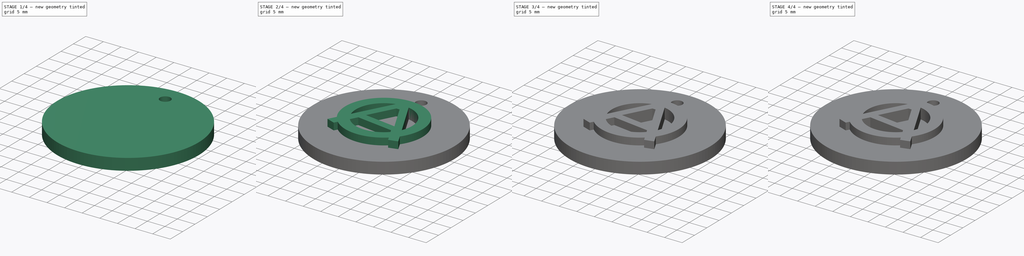
[diagram: build sequence overview — one tinted view per stage of 4, left to right]
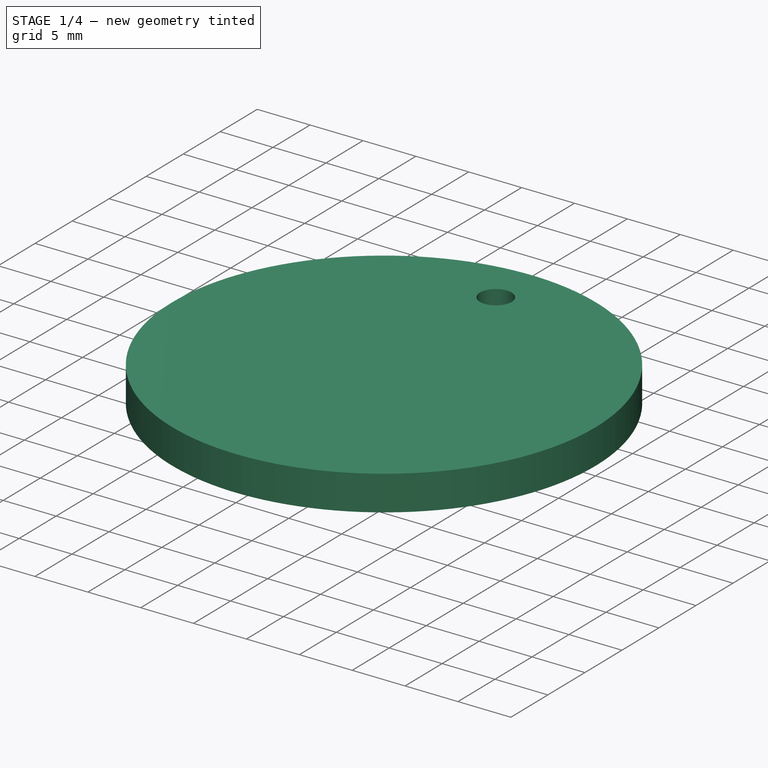
[diagram: stage 1 of 4 — iso view after this stage's code; geometry added in this stage tinted green]
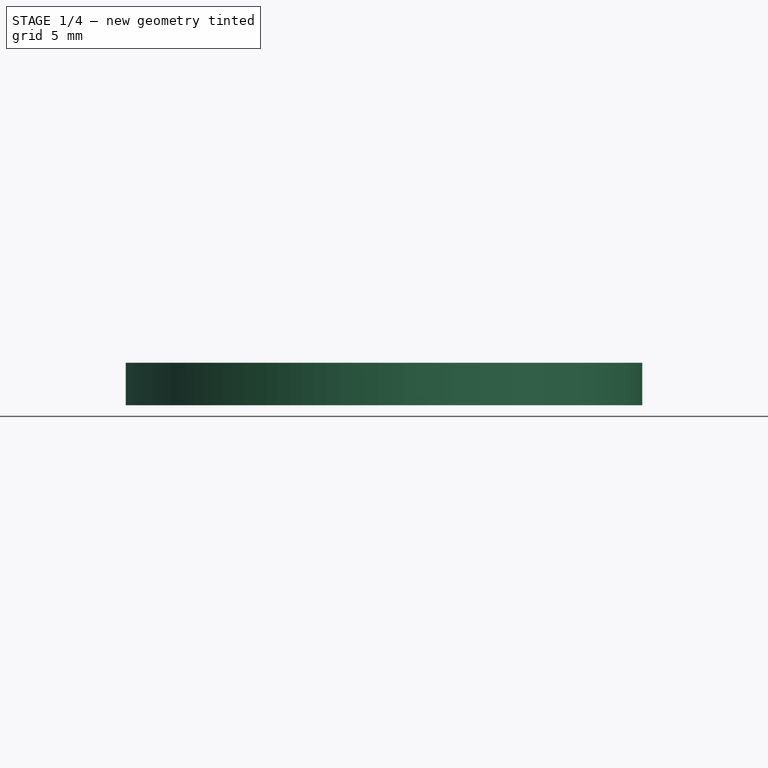
[diagram: stage 1 of 4 — front view after this stage's code; geometry added in this stage tinted green]
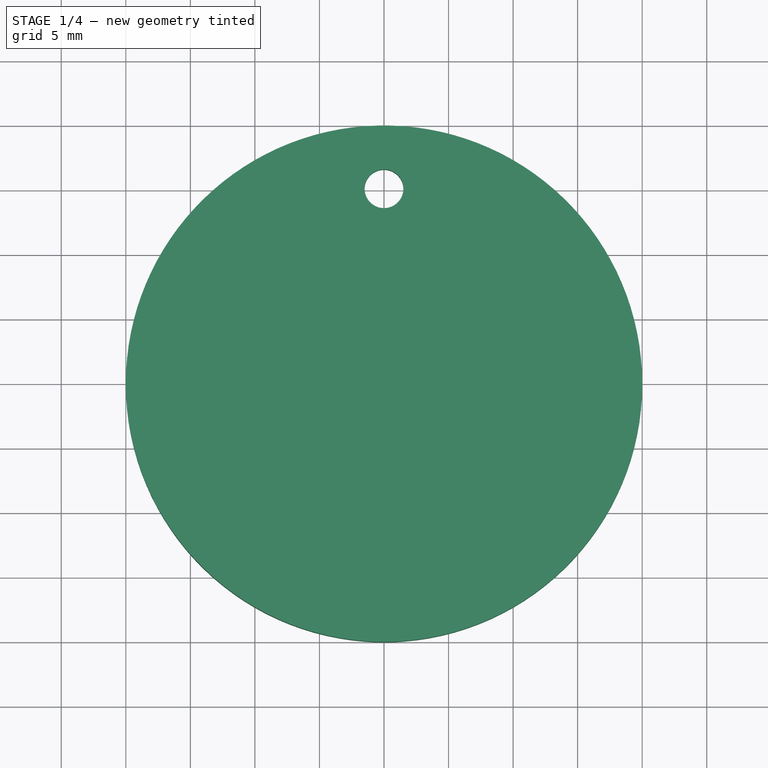
[diagram: stage 1 of 4 — top view after this stage's code; geometry added in this stage tinted green]
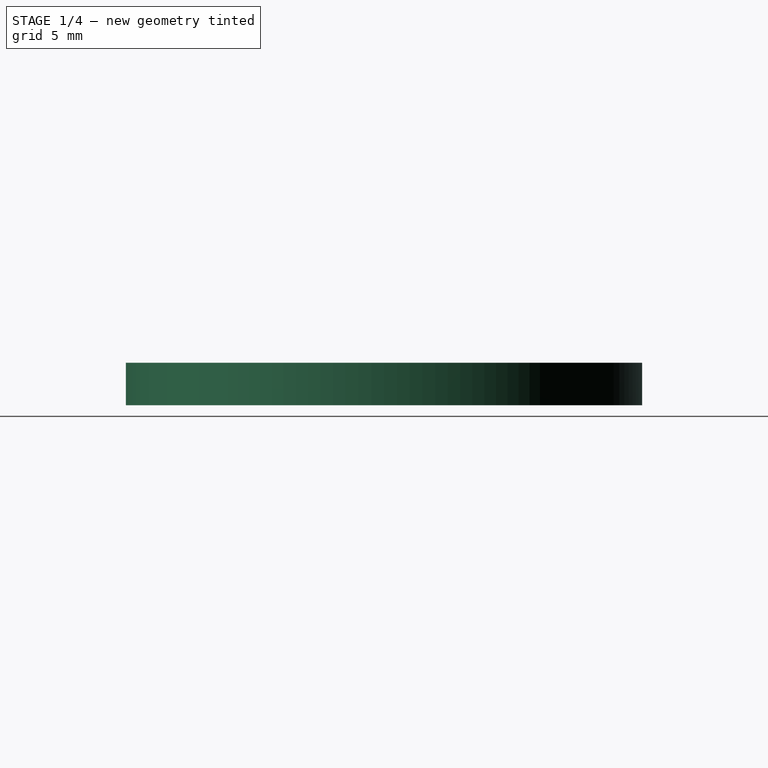
[diagram: stage 1 of 4 — right view after this stage's code; geometry added in this stage tinted green]
FCSTD DOCUMENT  (FreeCAD 0.16R6707 (Git))
Label: T5-Recuerdo
License: CreativeCommons Attribution-ShareAlike
LicenseURL: http://creativecommons.org/licenses/by-sa/4.0/
objects: Part::Feature×6, Part::Extrusion×4, Part::Cut×4, Sketcher::SketchObject×2, App::DocumentObjectGroup×2, Part::Cylinder×1, PartDesign::Pocket×1, PartDesign::Pad×1
note: 21 computed .brp shape members not serialized (recipe doc carries the construction recipe); baked Part::Feature solids carry a one-line shape summary decoded from their .brp

FEATURE [Part::Cylinder] Cylinder  label="casino-chip-main body"
  Angle = 360
  Height = 3.3
  Radius = 20
FEATURE [Sketcher::SketchObject] Sketch  label="hole-sketch"
  Placement = pos=(0,0,3.3) rot=(0,0,1;0rad)
  Support = -> Cylinder [Face2]
  sketch-geometry (1):
    g0: Circle CenterX=0 CenterY=15.1 CenterZ=0 NormalX=0 NormalY=0 NormalZ=1 Radius=1.5
  constraints (3):
    c: Radius(g0) = 1.5
    c: PointOnObject(g0,g-2)
    c: DistanceY(g-1,g0) = 15.1
FEATURE [PartDesign::Pocket] Pocket  label="casino-chip-key-chain"
  Length = 5
  Sketch = -> Sketch
  Type = 1
FEATURE [Part::Feature] Face025
  shape: bbox 6.471 x 11.08 x 2e-07 mm, 1 faces, 0 solids (baked)
FEATURE [Part::Feature] Face026
  shape: bbox 11.82 x 4.755 x 2e-07 mm, 1 faces, 0 solids (baked)
FEATURE [Part::Feature] Face027
  shape: bbox 5.938 x 10.38 x 2e-07 mm, 1 faces, 0 solids (baked)
FEATURE [Part::Feature] Face028
  shape: bbox 8.984 x 8.31 x 2e-07 mm, 1 faces, 0 solids (baked)
FEATURE [Part::Extrusion] Extrude
  Base = -> Face025
  Dir = (0,0,-1)
  Solid = false
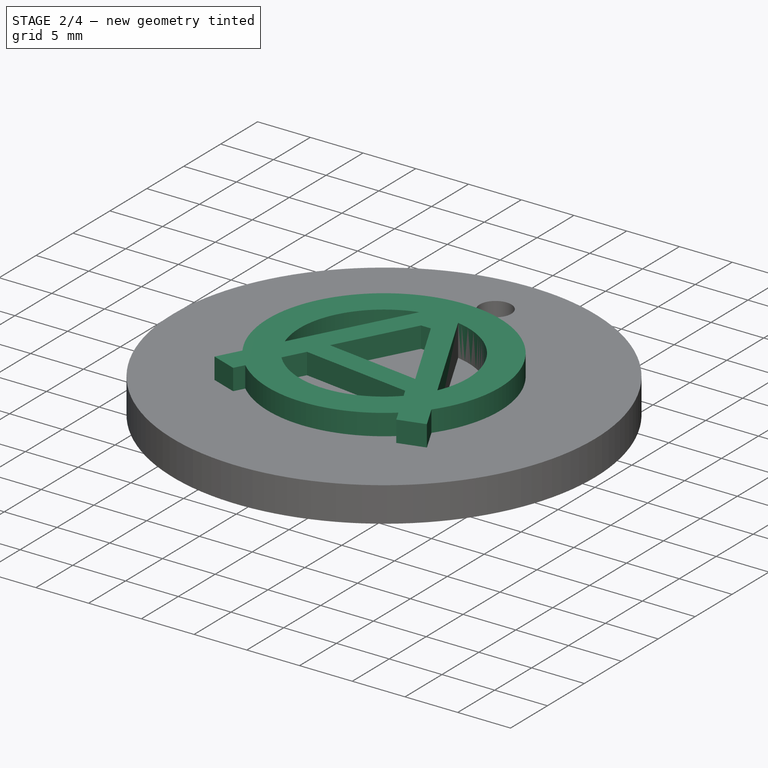
[diagram: stage 2 of 4 — iso view after this stage's code; geometry added in this stage tinted green]
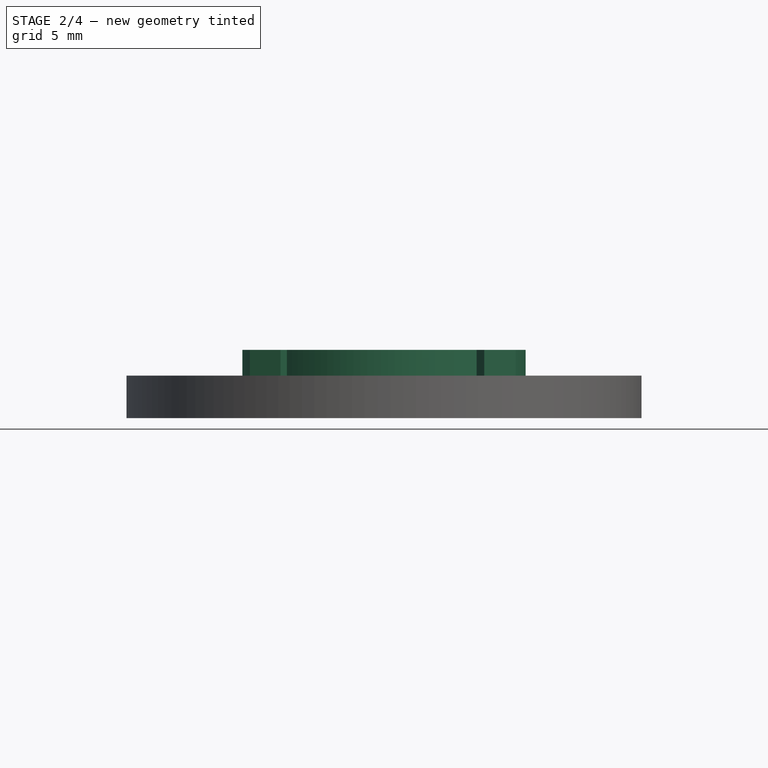
[diagram: stage 2 of 4 — front view after this stage's code; geometry added in this stage tinted green]
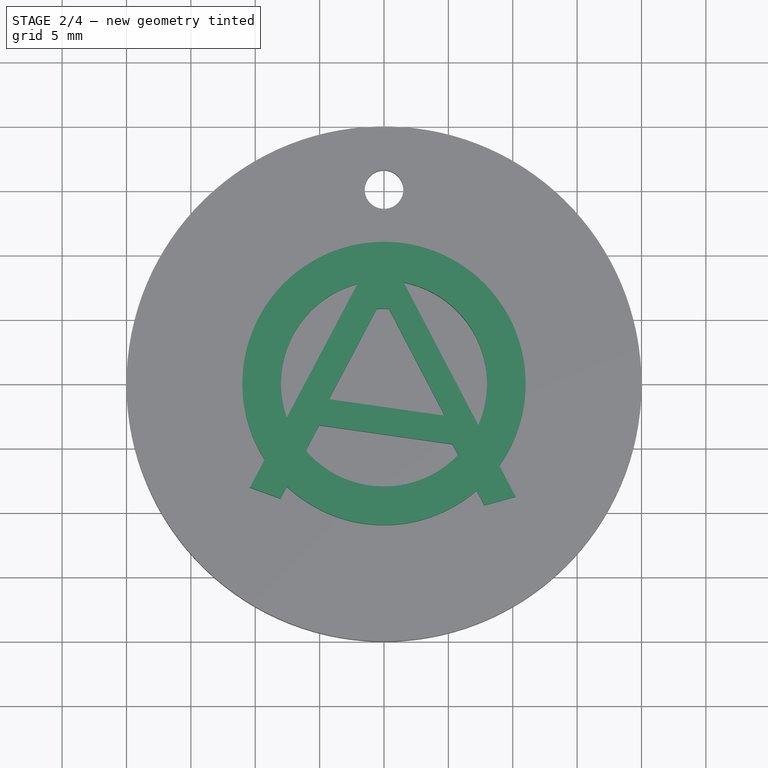
[diagram: stage 2 of 4 — top view after this stage's code; geometry added in this stage tinted green]
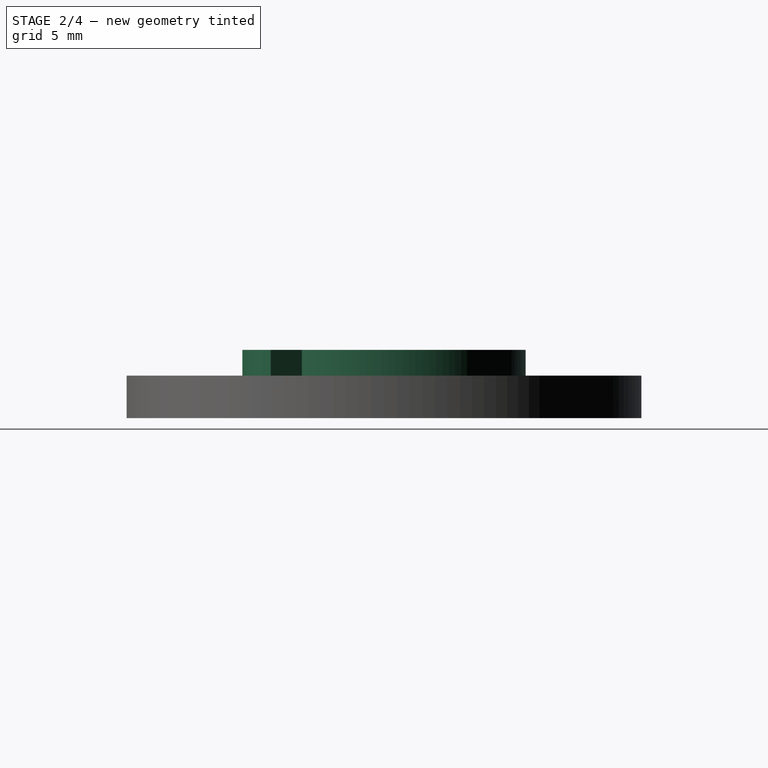
[diagram: stage 2 of 4 — right view after this stage's code; geometry added in this stage tinted green]
FEATURE [App::DocumentObjectGroup] Group001  label="Casino-chip-src"
  Group = -> [Cylinder,Pocket]
FEATURE [Part::Feature] Sweep  label="key-ring-model-1"
  Placement = pos=(-1.2,24.7546,1.6391) rot=(0.333333,0.881918,0.333333;1.69612rad)
  shape: bbox 3.31 x 27.02 x 26.33 mm, 4 faces (baked)
FEATURE [Part::Feature] Cut  label="key-model-1"
  Placement = pos=(-5.46976,31.0266,0) rot=(0,0,1;0.517888rad)
  shape: bbox 49.82 x 36.6 x 2.3 mm, 44 faces (baked)
FEATURE [App::DocumentObjectGroup] Group  label="Assembly"
  Group = -> [Sweep,Cut]
FEATURE [Sketcher::SketchObject] Sketch001
  Placement = pos=(0,0,3.3) rot=(0,0,1;0rad)
  Support = -> Pocket [Face2]
  sketch-geometry (20):
    g0: ArcOfCircle CenterX=0 CenterY=0 CenterZ=0 NormalX=0 NormalY=0 NormalZ=1 Radius=11 StartAngle=5.66462 EndAngle=9.99274
    g1: ArcOfCircle CenterX=0 CenterY=0 CenterZ=0 NormalX=0 NormalY=0 NormalZ=1 Radius=8 StartAngle=1.83155 EndAngle=3.47946
    g2: LineSegment StartX=-2.06245 StartY=7.72957 StartZ=0 EndX=-7.54772 EndY=-2.65178 EndZ=0
    g3: LineSegment StartX=-10.4134 StartY=-8.07537 StartZ=0 EndX=-8.04235 EndY=-8.94595 EndZ=0
    g4: LineSegment StartX=-8.04235 StartY=-8.94595 StartZ=0 EndX=-7.54496 EndY=-8.0046 EndZ=0
    g5: LineSegment StartX=-5.02992 StartY=-3.24468 StartZ=0 EndX=5.31374 EndY=-4.72147 EndZ=0
    g6: LineSegment StartX=5.31374 StartY=-4.72147 StartZ=0 EndX=5.75185 EndY=-5.56024 EndZ=0
    g7: LineSegment StartX=7.79075 StartY=-9.46382 StartZ=0 EndX=10.2241 EndY=-8.7953 EndZ=0
    g8: LineSegment StartX=10.2241 StartY=-8.7953 StartZ=0 EndX=8.96183 EndY=-6.37853 EndZ=0
    g9: LineSegment StartX=-6.06933 StartY=-5.21184 StartZ=0 EndX=-5.02992 EndY=-3.24468 EndZ=0
    g10: LineSegment StartX=-9.27301 StartY=-5.91703 StartZ=0 EndX=-10.4134 EndY=-8.07537 EndZ=0
    g11: LineSegment StartX=7.19405 StartY=-8.3214 StartZ=0 EndX=7.79075 EndY=-9.46382 EndZ=0
    g12: LineSegment StartX=7.3182 StartY=-3.23172 StartZ=0 EndX=1.52867 EndY=7.85259 EndZ=0
    g13: ArcOfCircle CenterX=0 CenterY=0 CenterZ=0 NormalX=0 NormalY=0 NormalZ=1 Radius=8 StartAngle=3.85113 EndAngle=5.51472
    g14: ArcOfCircle CenterX=0 CenterY=0 CenterZ=0 NormalX=0 NormalY=0 NormalZ=1 Radius=11 StartAngle=3.95654 EndAngle=5.42525
    g15: LineSegment StartX=-4.26659 StartY=-1.22212 StartZ=0 EndX=4.71754 EndY=-2.5048 EndZ=0
    g16: LineSegment StartX=4.71754 StartY=-2.5048 StartZ=0 EndX=0.3771 EndY=5.80518 EndZ=0
    g17: LineSegment StartX=0.3771 StartY=5.80518 StartZ=0 EndX=-0.553524 EndY=5.80518 EndZ=0
    g18: LineSegment StartX=-0.553524 StartY=5.80518 StartZ=0 EndX=-4.26659 EndY=-1.22212 EndZ=0
    g19: ArcOfCircle CenterX=0 CenterY=0 CenterZ=0 NormalX=0 NormalY=0 NormalZ=1 Radius=8 StartAngle=5.86734 EndAngle=7.66172
  constraints (41):
    c: Coincident(g0,g-1)
    c: Radius(g0) = 11
    c: PointOnObject(g1,g-1)
    c: Coincident(g0,g1)
    c: Radius(g1) = 8
    c: Coincident(g10,g3)
    c: Coincident(g3,g4)
    c: Coincident(g9,g5)
    c: Coincident(g5,g6)
    c: Coincident(g11,g7)
    c: Coincident(g7,g8)
    c: Tangent(g4,g9)
    c: Tangent(g2,g10)
    c: Tangent(g6,g11)
    c: Tangent(g8,g12)
    c: PointOnObject(g12,g1)
    c: Coincident(g1,g2)
    c: Coincident(g0,g8)
    c: Coincident(g14,g11)
    c: Coincident(g13,g6)
    c: Equal(g1,g13)
    c: Coincident(g1,g2)
    c: Coincident(g13,g9)
    c: Coincident(g1,g13)
    c: Equal(g0,g14)
    c: Coincident(g0,g10)
    c: Coincident(g14,g4)
    c: Coincident(g0,g14)
    c: Coincident(g15,g16)
    c: Coincident(g16,g17)
    c: Coincident(g17,g18)
    c: Coincident(g18,g15)
    c: Parallel(g2,g18)
    c: Parallel(g18,g9)
    c: Coincident(g19,g-1)
    c: Coincident(g19,g12)
    c: Coincident(g12,g19)
    c: Parallel(g16,g12)
    c: Parallel(g12,g6)
    c: Parallel(g15,g5)
    c: Horizontal(g17)
FEATURE [PartDesign::Pad] Pad
  Length = 2
  Length2 = 100
  Sketch = -> Sketch001
  Type = 0
FEATURE [Part::Extrusion] Extrude003
  Base = -> Face028
  Dir = (0,0,-1)
  Solid = false
FEATURE [Part::Cut] Cut001
  Base = -> Pad
  Tool = -> Extrude
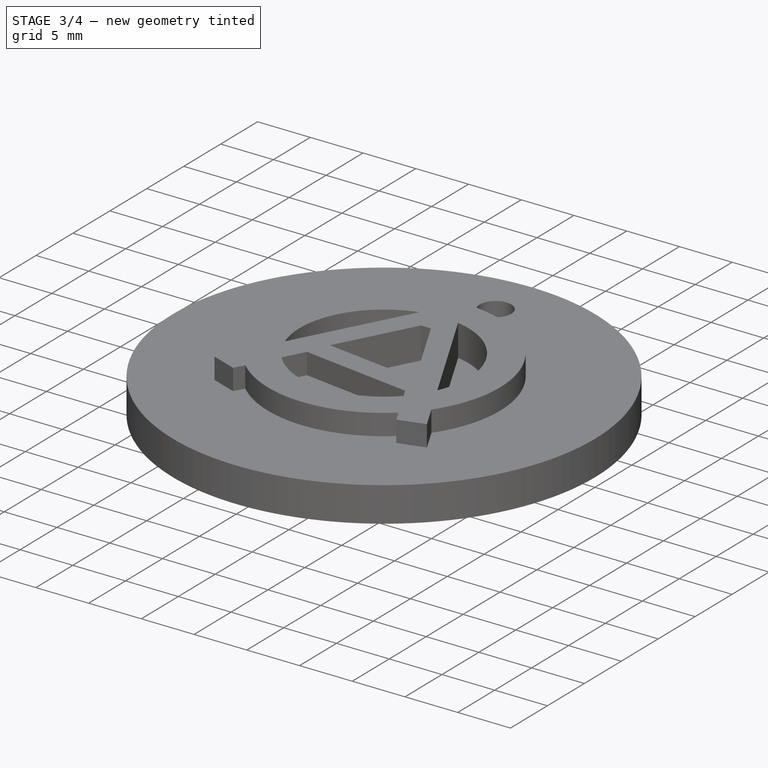
[diagram: stage 3 of 4 — iso view after this stage's code; geometry added in this stage tinted green]
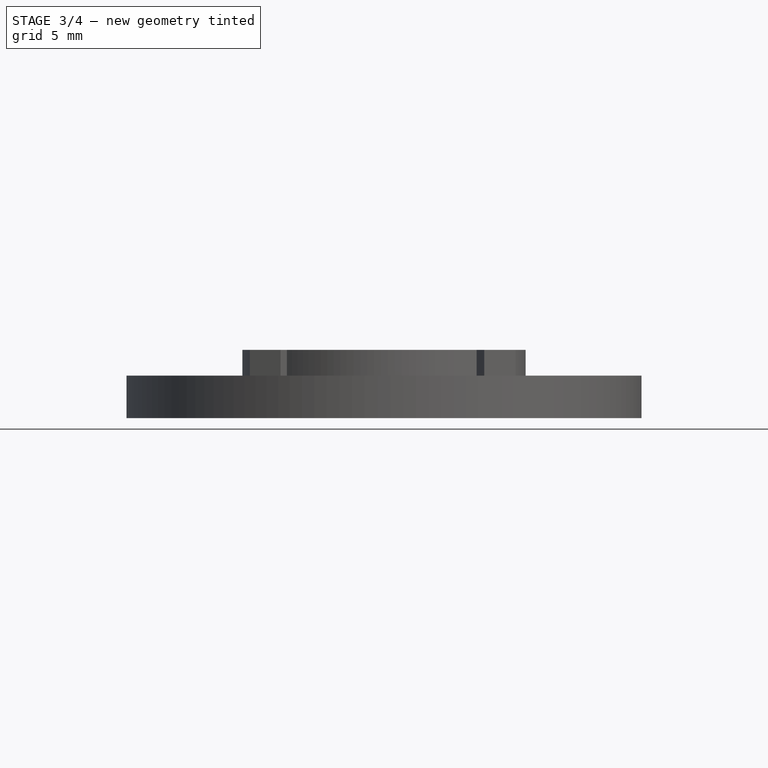
[diagram: stage 3 of 4 — front view after this stage's code; geometry added in this stage tinted green]
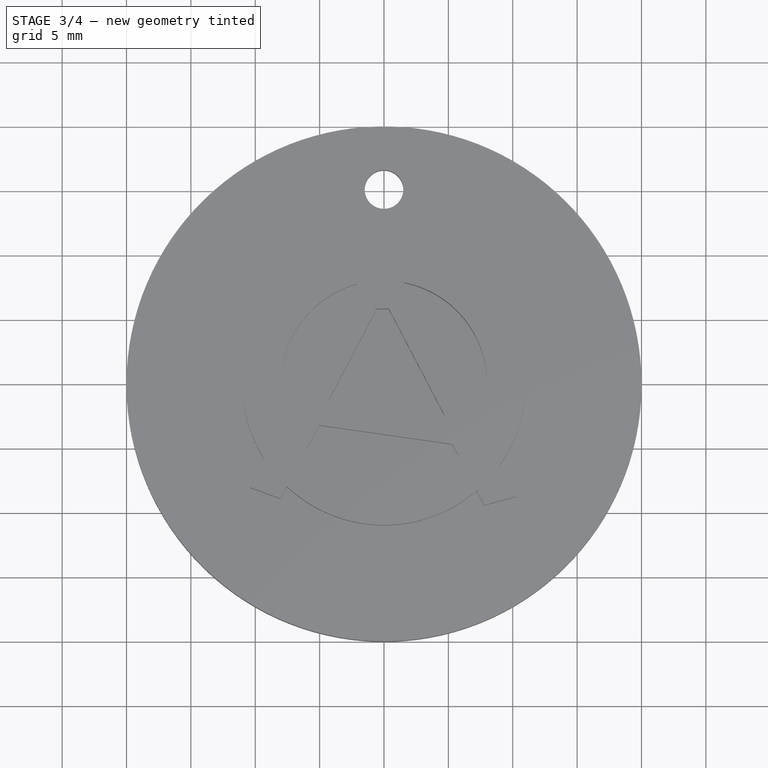
[diagram: stage 3 of 4 — top view after this stage's code; geometry added in this stage tinted green]
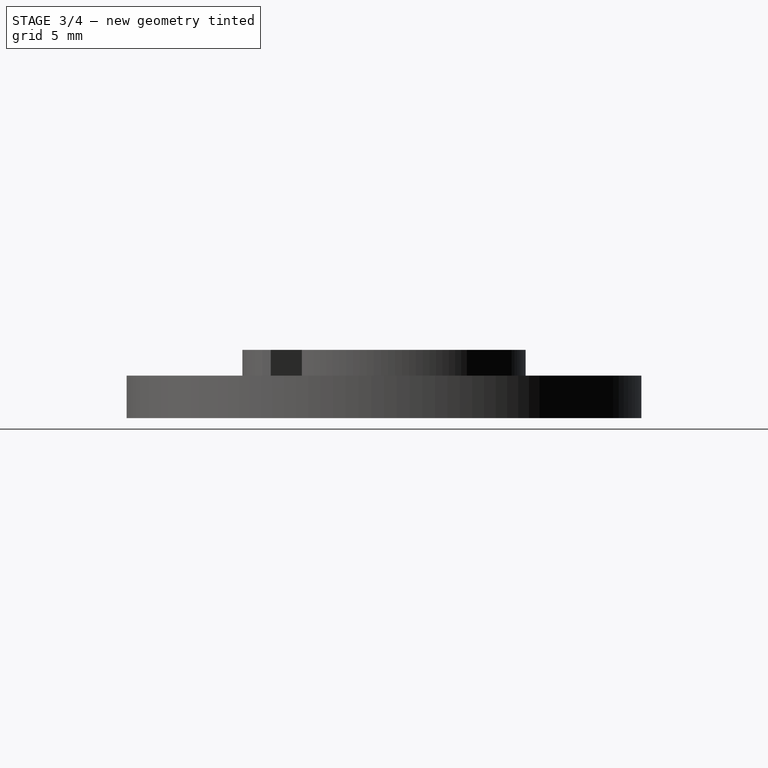
[diagram: stage 3 of 4 — right view after this stage's code; geometry added in this stage tinted green]
FEATURE [Part::Extrusion] Extrude002
  Base = -> Face027
  Dir = (0,0,-1)
  Solid = false
FEATURE [Part::Cut] Cut002
  Base = -> Cut001
  Tool = -> Extrude003
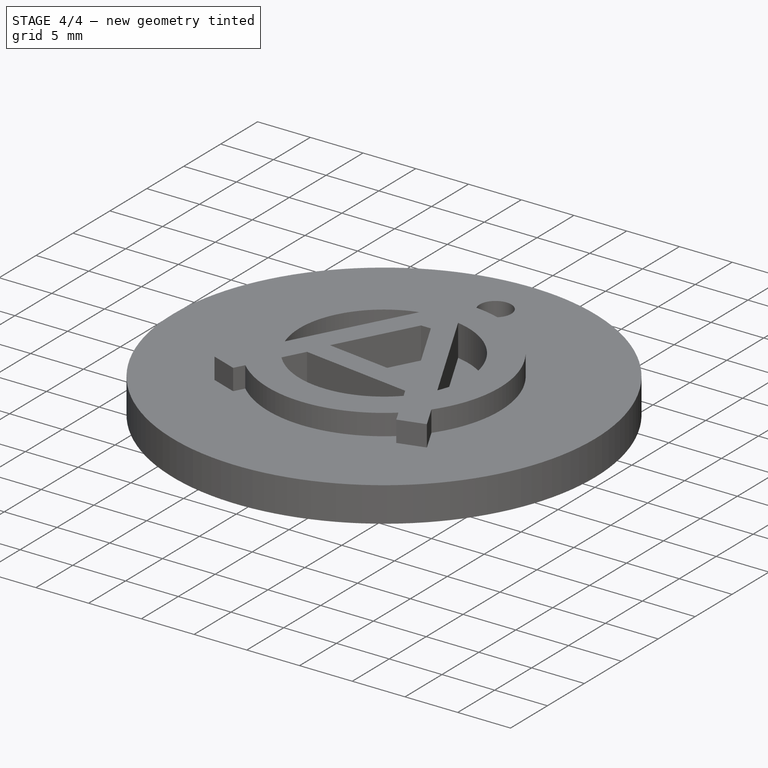
[diagram: stage 4 of 4 — iso view after this stage's code; geometry added in this stage tinted green]
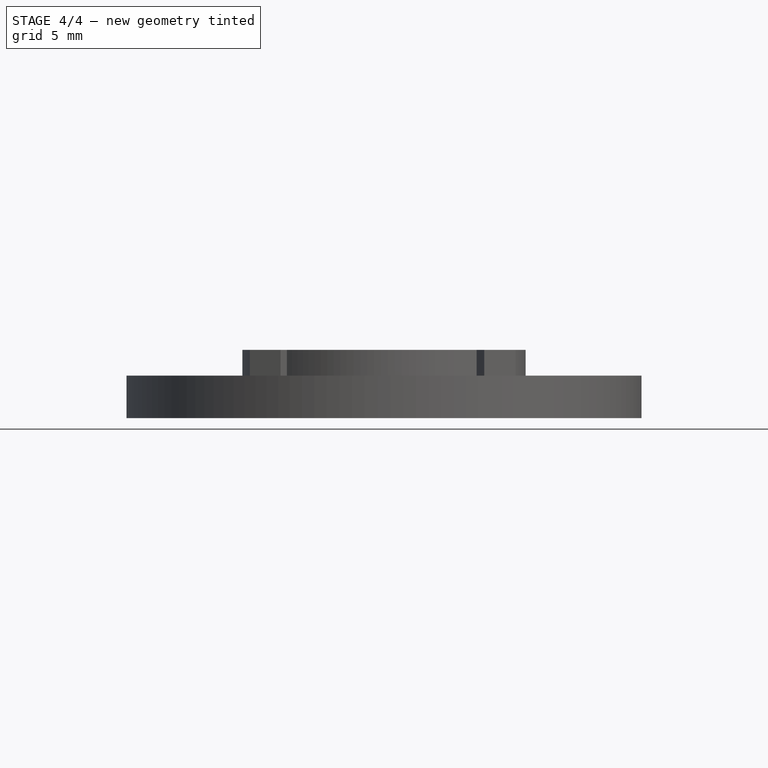
[diagram: stage 4 of 4 — front view after this stage's code; geometry added in this stage tinted green]
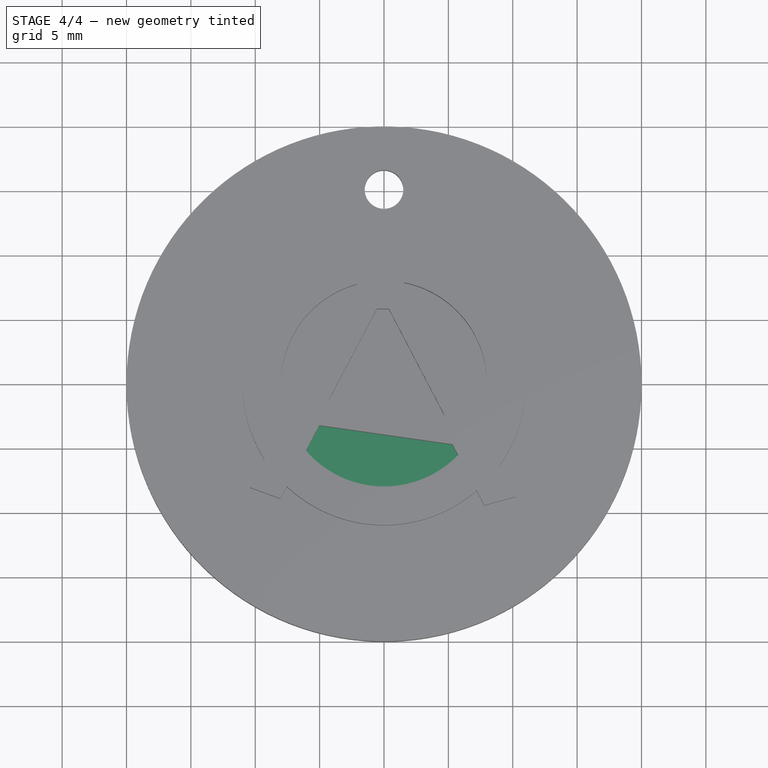
[diagram: stage 4 of 4 — top view after this stage's code; geometry added in this stage tinted green]
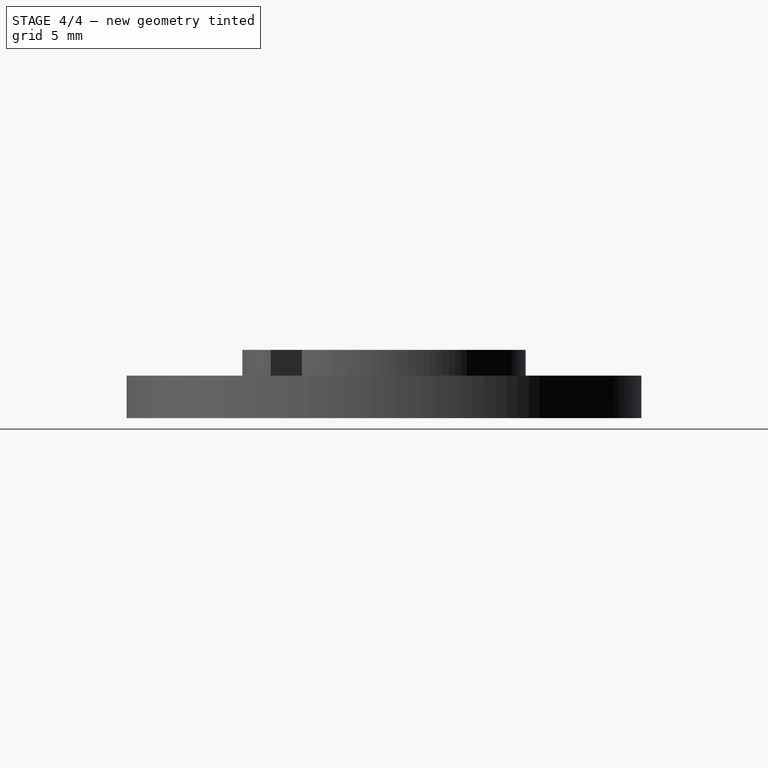
[diagram: stage 4 of 4 — right view after this stage's code; geometry added in this stage tinted green]
FEATURE [Part::Extrusion] Extrude001
  Base = -> Face026
  Dir = (0,0,-1)
  Solid = false
FEATURE [Part::Cut] Cut003
  Base = -> Cut002
  Tool = -> Extrude002
FEATURE [Part::Cut] Cut004
  Base = -> Cut003
  Tool = -> Extrude001
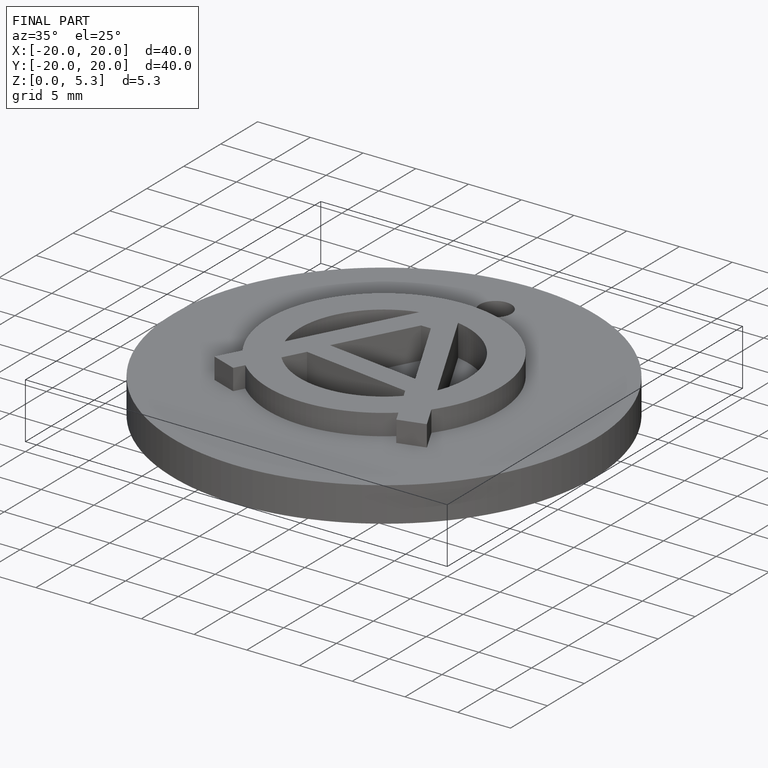
[diagram: finished part — iso view with bounding-box wireframe]
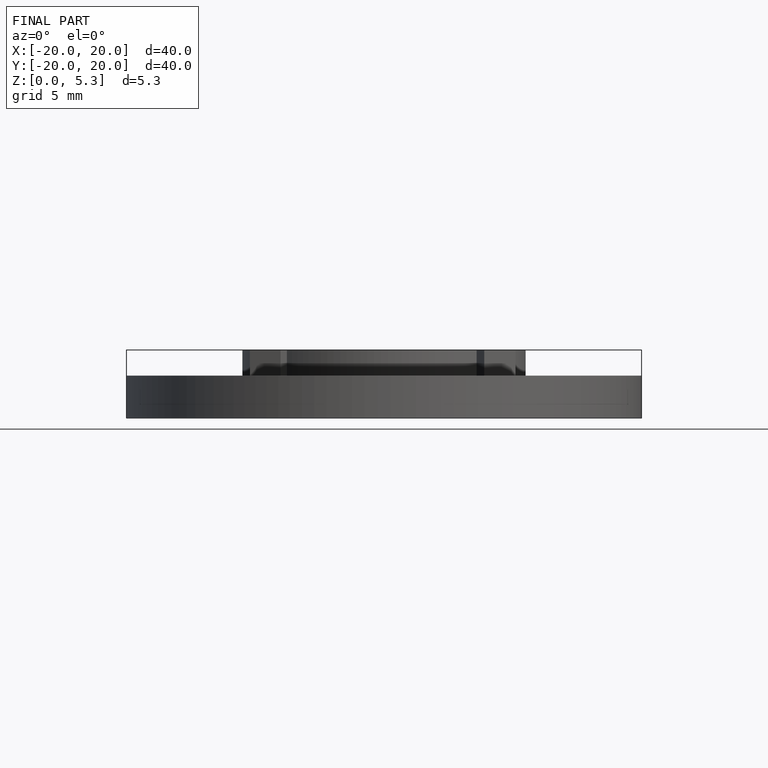
[diagram: finished part — front view with bounding-box wireframe]
